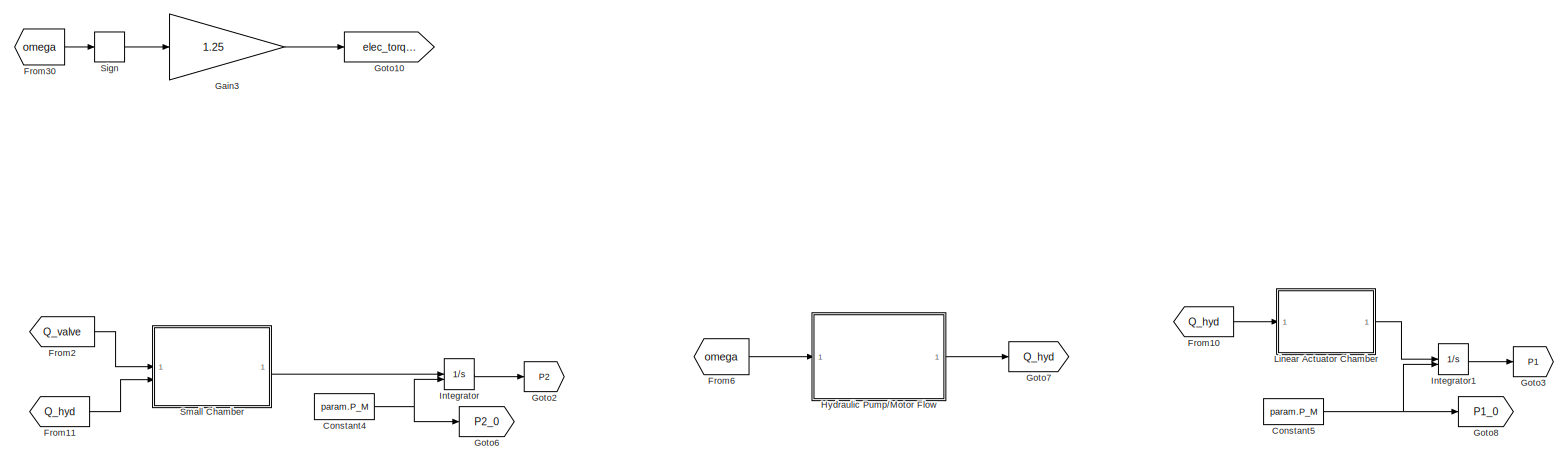
[diagram: root canvas - part 1/4, top left region]
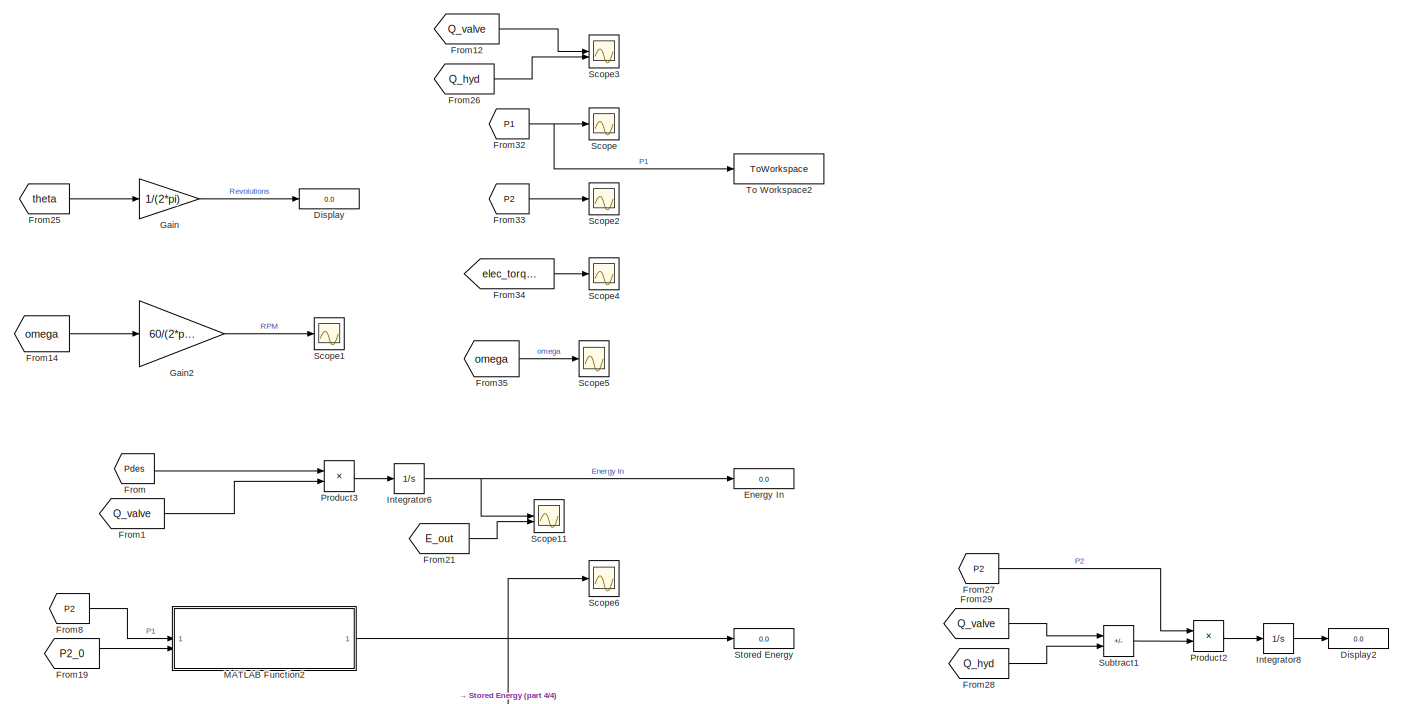
[diagram: root canvas - part 2/4, top right region]
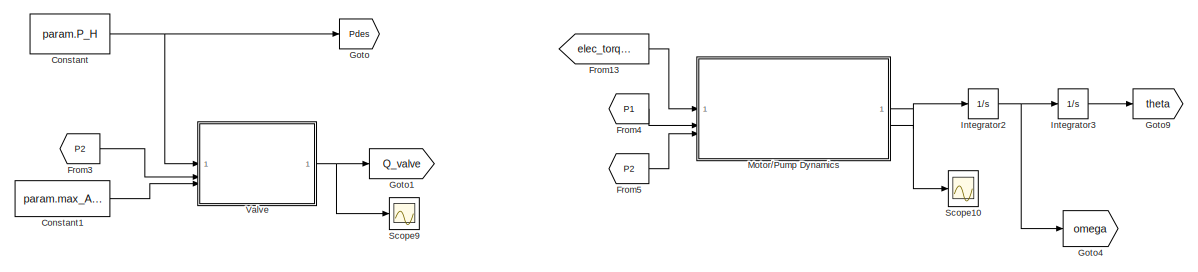
[diagram: root canvas - part 3/4, middle left region]
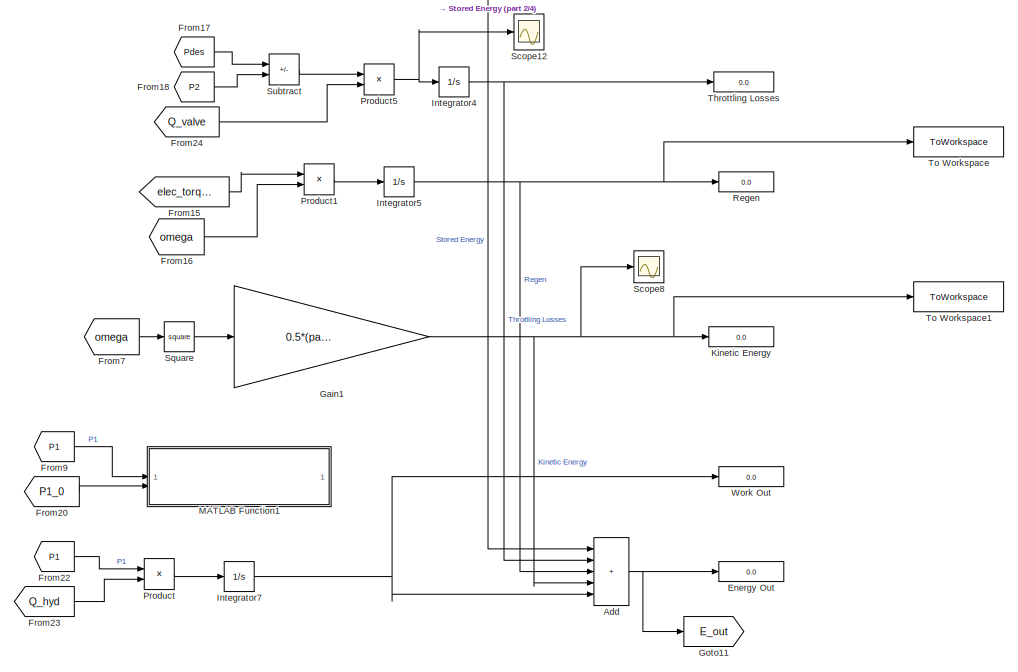
[diagram: root canvas - part 4/4, bottom right region]
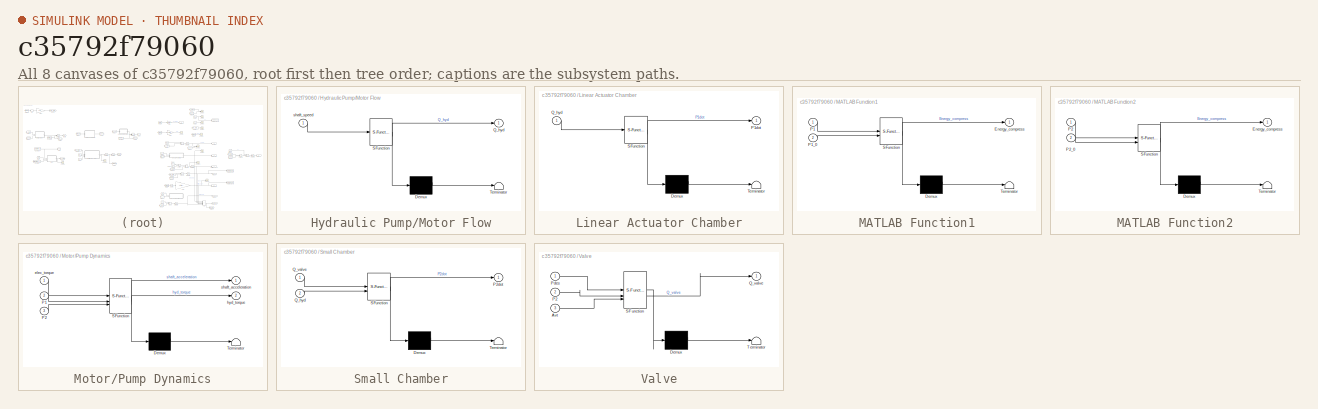
[diagram: thumbnail index - all 8 canvases of the model, root first then tree order]
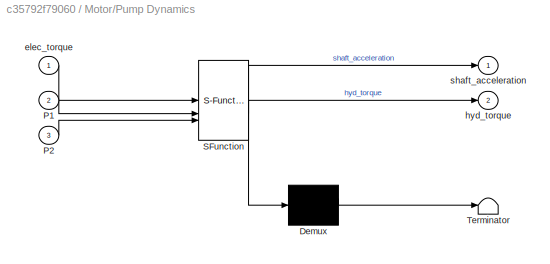
MODEL slx_c35792f79060
KIND model
CONFIG AbsTol = auto
CONFIG EnableMultiTasking = off
CONFIG FixedStep = 1e-7
CONFIG InitFcn = %% Parameters\n\nparam = struct();\n\n% Volume of chambers \nparam.V1_0 = 1e-3;\nparam.V2_0 = 20e-6;\n\n% Pressure rails\nparam.P_H = 20e6;\nparam.P_M = 10e6;\n\n% Valve things\nparam.max_Avt = 0.5*0.25*pi*(20e-3)^2;\nparam.Cd = 0.6;\n\n% Fluid properties\nparam.beta = 1.8e9;\nparam.rho = 870;\n\n% Electric motor stuff\nparam.Kt = 70.5e-3;\nparam.Ke = 70.5e-3;\nparam.J_elec = 140e-7;\n\n% Pump things\nparam.J_hyd = 3000e-7...<+66ch>
CONFIG MaxStep = 1e-5
CONFIG MinStep = auto
CONFIG RelTol = 1e-6
CONFIG SampleTimeConstraint = Unconstrained
CONFIG SolverName = ode1
CONFIG StartTime = 0.0
CONFIG StopTime = 0.15
BLOCK [Sum] Add
  IconShape = rectangular
  Inputs = +++++
BLOCK [Constant] Constant
  Value = param.P_H
BLOCK [Constant] Constant1
  Value = param.max_Avt
BLOCK [Constant] Constant4
  Value = param.P_M
BLOCK [Constant] Constant5
  Value = param.P_M
BLOCK [Display] Display
  Decimation = 1
BLOCK [Display] Display2
  Decimation = 1
BLOCK [Display] Energy In
  Decimation = 1
BLOCK [Display] Energy Out
  Decimation = 1
BLOCK [From] From
  GotoTag = Pdes
BLOCK [From] From1
  GotoTag = Q_valve
BLOCK [From] From10
  GotoTag = Q_hyd
BLOCK [From] From11
  GotoTag = Q_hyd
BLOCK [From] From12
  GotoTag = Q_valve
BLOCK [From] From13
  GotoTag = elec_torque
BLOCK [From] From14
  GotoTag = omega
BLOCK [From] From15
  GotoTag = elec_torque
BLOCK [From] From16
  GotoTag = omega
BLOCK [From] From17
  GotoTag = Pdes
BLOCK [From] From18
  GotoTag = P2
BLOCK [From] From19
  GotoTag = P2_0
BLOCK [From] From2
  GotoTag = Q_valve
BLOCK [From] From20
  GotoTag = P1_0
BLOCK [From] From21
  GotoTag = E_out
BLOCK [From] From22
  GotoTag = P1
BLOCK [From] From23
  GotoTag = Q_hyd
BLOCK [From] From24
  GotoTag = Q_valve
BLOCK [From] From25
  GotoTag = theta
BLOCK [From] From26
  GotoTag = Q_hyd
BLOCK [From] From27
  GotoTag = P2
BLOCK [From] From28
  GotoTag = Q_hyd
BLOCK [From] From29
  GotoTag = Q_valve
BLOCK [From] From3
  GotoTag = P2
BLOCK [From] From30
  GotoTag = omega
BLOCK [From] From32
  GotoTag = P1
BLOCK [From] From33
  GotoTag = P2
BLOCK [From] From34
  GotoTag = elec_torque
BLOCK [From] From35
  GotoTag = omega
BLOCK [From] From4
  GotoTag = P1
BLOCK [From] From5
  GotoTag = P2
BLOCK [From] From6
  GotoTag = omega
BLOCK [From] From7
  GotoTag = omega
BLOCK [From] From8
  GotoTag = P2
BLOCK [From] From9
  GotoTag = P1
BLOCK [Gain] Gain
  Gain = 1/(2*pi)
BLOCK [Gain] Gain1
  Gain = 0.5*(param.J_elec+param.J_hyd)
BLOCK [Gain] Gain2
  Gain = 60/(2*pi)
BLOCK [Gain] Gain3
  Gain = 1.25
BLOCK [Goto] Goto
  GotoTag = Pdes
BLOCK [Goto] Goto1
  GotoTag = Q_valve
BLOCK [Goto] Goto10
  GotoTag = elec_torque
BLOCK [Goto] Goto11
  GotoTag = E_out
BLOCK [Goto] Goto2
  GotoTag = P2
BLOCK [Goto] Goto3
  GotoTag = P1
BLOCK [Goto] Goto4
  GotoTag = omega
BLOCK [Goto] Goto6
  GotoTag = P2_0
BLOCK [Goto] Goto7
  GotoTag = Q_hyd
BLOCK [Goto] Goto8
  GotoTag = P1_0
BLOCK [Goto] Goto9
  GotoTag = theta
BLOCK [SubSystem] Hydraulic Pump//Motor Flow
  ErrorFcn = Stateflow.Translate.translate
  PermitHierarchicalResolution = ExplicitOnly
  SFBlockType = MATLAB Function
  TreatAsAtomicUnit = on
BLOCK [Demux] Hydraulic Pump//Motor Flow/ Demux 
  Outputs = 1
BLOCK [S-Function] Hydraulic Pump//Motor Flow/ SFunction 
  EnableBusSupport = on
  FunctionName = sf_sfun
  Parameters = param
  PortCounts = [1 2]
  SFcnIsStateOwnerBlock = off
  SFunctionDeploymentMode = off
  Tag = Stateflow S-Function 3
BLOCK [Terminator] Hydraulic Pump//Motor Flow/ Terminator 
BLOCK [Outport] Hydraulic Pump//Motor Flow/Q_hyd
BLOCK [Inport] Hydraulic Pump//Motor Flow/shaft_speed
BLOCK [Integrator] Integrator
  InitialCondition = param.P_M
  InitialConditionSource = external
BLOCK [Integrator] Integrator1
  InitialCondition = param.P_M
  InitialConditionSource = external
BLOCK [Integrator] Integrator2
BLOCK [Integrator] Integrator3
BLOCK [Integrator] Integrator4
BLOCK [Integrator] Integrator5
BLOCK [Integrator] Integrator6
BLOCK [Integrator] Integrator7
BLOCK [Integrator] Integrator8
BLOCK [Display] Kinetic Energy
  Decimation = 1
BLOCK [SubSystem] Linear Actuator Chamber
  ErrorFcn = Stateflow.Translate.translate
  PermitHierarchicalResolution = ExplicitOnly
  SFBlockType = MATLAB Function
  TreatAsAtomicUnit = on
BLOCK [Demux] Linear Actuator Chamber/ Demux 
  Outputs = 1
BLOCK [S-Function] Linear Actuator Chamber/ SFunction 
  EnableBusSupport = on
  FunctionName = sf_sfun
  Parameters = param
  PortCounts = [1 2]
  SFcnIsStateOwnerBlock = off
  SFunctionDeploymentMode = off
  Tag = Stateflow S-Function 5
BLOCK [Terminator] Linear Actuator Chamber/ Terminator 
BLOCK [Outport] Linear Actuator Chamber/P1dot
BLOCK [Inport] Linear Actuator Chamber/Q_hyd
BLOCK [SubSystem] MATLAB Function1
  ErrorFcn = Stateflow.Translate.translate
  LibrarySourceBlock = simulink/User-Defined\nFunctions/MATLAB Function
  PermitHierarchicalResolution = ExplicitOnly
  SFBlockType = MATLAB Function
  TreatAsAtomicUnit = on
BLOCK [Demux] MATLAB Function1/ Demux 
  Outputs = 1
BLOCK [S-Function] MATLAB Function1/ SFunction 
  EnableBusSupport = on
  FunctionName = sf_sfun
  Parameters = param
  PortCounts = [2 2]
  SFcnIsStateOwnerBlock = off
  SFunctionDeploymentMode = off
  Tag = Stateflow S-Function 7
BLOCK [Terminator] MATLAB Function1/ Terminator 
BLOCK [Outport] MATLAB Function1/Energy_compress
BLOCK [Inport] MATLAB Function1/P1
BLOCK [Inport] MATLAB Function1/P1_0
  Port = 2
BLOCK [SubSystem] MATLAB Function2
  ErrorFcn = Stateflow.Translate.translate
  LibrarySourceBlock = simulink/User-Defined\nFunctions/MATLAB Function
  PermitHierarchicalResolution = ExplicitOnly
  SFBlockType = MATLAB Function
  TreatAsAtomicUnit = on
BLOCK [Demux] MATLAB Function2/ Demux 
  Outputs = 1
BLOCK [S-Function] MATLAB Function2/ SFunction 
  EnableBusSupport = on
  FunctionName = sf_sfun
  Parameters = param
  PortCounts = [2 2]
  SFcnIsStateOwnerBlock = off
  SFunctionDeploymentMode = off
  Tag = Stateflow S-Function 4
BLOCK [Terminator] MATLAB Function2/ Terminator 
BLOCK [Outport] MATLAB Function2/Energy_compress
BLOCK [Inport] MATLAB Function2/P2
BLOCK [Inport] MATLAB Function2/P2_0
  Port = 2
BLOCK [SubSystem] Motor//Pump Dynamics
  ErrorFcn = Stateflow.Translate.translate
  PermitHierarchicalResolution = ExplicitOnly
  SFBlockType = MATLAB Function
  TreatAsAtomicUnit = on
BLOCK [Demux] Motor//Pump Dynamics/ Demux 
  Outputs = 1
BLOCK [S-Function] Motor//Pump Dynamics/ SFunction 
  EnableBusSupport = on
  FunctionName = sf_sfun
  Parameters = param
  PortCounts = [3 3]
  SFcnIsStateOwnerBlock = off
  SFunctionDeploymentMode = off
  Tag = Stateflow S-Function 6
BLOCK [Terminator] Motor//Pump Dynamics/ Terminator 
BLOCK [Inport] Motor//Pump Dynamics/P1
  Port = 2
BLOCK [Inport] Motor//Pump Dynamics/P2
  Port = 3
BLOCK [Inport] Motor//Pump Dynamics/elec_torque
BLOCK [Outport] Motor//Pump Dynamics/hyd_torque
  Port = 2
BLOCK [Outport] Motor//Pump Dynamics/shaft_acceleration
BLOCK [Product] Product
BLOCK [Product] Product1
BLOCK [Product] Product2
BLOCK [Product] Product3
BLOCK [Product] Product5
BLOCK [Display] Regen
  Decimation = 1
BLOCK [Scope] Scope
  Floating = off
  NumInputPorts = 1
  ScopeSpecificationString = Simulink.scopes.TimeScopeBlockCfg('CurrentConfiguration', extmgr.ConfigurationSet(extmgr.Configuration('Core','General UI',true),extmgr.Configuration('Core','Source UI',true),extmgr.Configuration('Sources','WiredSimulink',true,'DataLoggingVariableName','ScopeData1'),extmgr.Configuration('Visuals','Time Domain',true,'SerializedDisplays',{struct('MinYLimReal','8604179.71879','MaxYLimReal','22562382....<+1483ch>
BLOCK [Scope] Scope1
  Floating = off
  NumInputPorts = 1
  ScopeSpecificationString = Simulink.scopes.TimeScopeBlockCfg('CurrentConfiguration', extmgr.ConfigurationSet(extmgr.Configuration('Core','General UI',true),extmgr.Configuration('Core','Source UI',true),extmgr.Configuration('Sources','WiredSimulink',true,'DataLoggingVariableName','ScopeData1'),extmgr.Configuration('Visuals','Time Domain',true,'SerializedDisplays',{struct('MinYLimReal','-3631.17273','MaxYLimReal','3631.44467'...<+1412ch>
BLOCK [Scope] Scope10
  Floating = off
  NumInputPorts = 1
  ScopeSpecificationString = Simulink.scopes.TimeScopeBlockCfg('CurrentConfiguration', extmgr.ConfigurationSet(extmgr.Configuration('Core','General UI',true),extmgr.Configuration('Core','Source UI',true),extmgr.Configuration('Sources','WiredSimulink',true,'DataLoggingVariableName','ScopeData1'),extmgr.Configuration('Visuals','Time Domain',true,'SerializedDisplays',{struct('MinYLimReal','-3.18377','MaxYLimReal','3.18033','YLab...<+1484ch>
BLOCK [Scope] Scope11
  Floating = off
  NumInputPorts = 2
  ScopeSpecificationString = Simulink.scopes.TimeScopeBlockCfg('CurrentConfiguration', extmgr.ConfigurationSet(extmgr.Configuration('Core','General UI',true),extmgr.Configuration('Core','Source UI',true),extmgr.Configuration('Sources','WiredSimulink',true,'DataLoggingVariableName','ScopeData2'),extmgr.Configuration('Visuals','Time Domain',true,'SerializedDisplays',{struct('MinYLimReal','223.42241','MaxYLimReal','223.45909','Y...<+1460ch>
BLOCK [Scope] Scope12
  Floating = off
  NumInputPorts = 1
  ScopeSpecificationString = Simulink.scopes.TimeScopeBlockCfg('CurrentConfiguration', extmgr.ConfigurationSet(extmgr.Configuration('Core','General UI',true),extmgr.Configuration('Core','Source UI',true),extmgr.Configuration('Sources','WiredSimulink',true,'DataLoggingVariableName','ScopeData3'),extmgr.Configuration('Visuals','Time Domain',true,'SerializedDisplays',{struct('MinYLimReal','-0.22301','MaxYLimReal','0.25245','YLab...<+1462ch>
BLOCK [Scope] Scope2
  Floating = off
  NumInputPorts = 1
  ScopeSpecificationString = Simulink.scopes.TimeScopeBlockCfg('CurrentConfiguration', extmgr.ConfigurationSet(extmgr.Configuration('Core','General UI',true),extmgr.Configuration('Core','Source UI',true),extmgr.Configuration('Sources','WiredSimulink',true,'DataLoggingVariableName','ScopeData2'),extmgr.Configuration('Visuals','Time Domain',true,'SerializedDisplays',{struct('MinYLimReal','8749929.75361','MaxYLimReal','21250632....<+1462ch>
BLOCK [Scope] Scope3
  Floating = off
  NumInputPorts = 2
  ScopeSpecificationString = Simulink.scopes.TimeScopeBlockCfg('CurrentConfiguration', extmgr.ConfigurationSet(extmgr.Configuration('Core','General UI',true),extmgr.Configuration('Core','Source UI',true),extmgr.Configuration('Sources','WiredSimulink',true,'DataLoggingVariableName','ScopeData1'),extmgr.Configuration('Visuals','Time Domain',true,'SerializedDisplays',{struct('MinYLimReal','-0.00191','MaxYLimReal','0.01609','YLab...<+1448ch>
BLOCK [Scope] Scope4
  Floating = off
  NumInputPorts = 1
  ScopeSpecificationString = Simulink.scopes.TimeScopeBlockCfg('CurrentConfiguration', extmgr.ConfigurationSet(extmgr.Configuration('Core','General UI',true),extmgr.Configuration('Core','Source UI',true),extmgr.Configuration('Sources','WiredSimulink',true,'DataLoggingVariableName','ScopeData4'),extmgr.Configuration('Visuals','Time Domain',true,'SerializedDisplays',{struct('MinYLimReal','-0.00000000000067','MaxYLimReal','0.000...<+1491ch>
BLOCK [Scope] Scope5
  Floating = off
  NumInputPorts = 1
  ScopeSpecificationString = Simulink.scopes.TimeScopeBlockCfg('CurrentConfiguration', extmgr.ConfigurationSet(extmgr.Configuration('Core','General UI',true),extmgr.Configuration('Core','Source UI',true),extmgr.Configuration('Sources','WiredSimulink',true,'DataLoggingVariableName','ScopeData5'),extmgr.Configuration('Visuals','Time Domain',true,'SerializedDisplays',{struct('MinYLimReal','-525.14339','MaxYLimReal','525.56049','...<+1473ch>
BLOCK [Scope] Scope6
  Floating = off
  NumInputPorts = 1
  ScopeSpecificationString = Simulink.scopes.TimeScopeBlockCfg('CurrentConfiguration', extmgr.ConfigurationSet(extmgr.Configuration('Core','General UI',true),extmgr.Configuration('Core','Source UI',true),extmgr.Configuration('Sources','WiredSimulink',true,'DataLoggingVariableName','ScopeData2'),extmgr.Configuration('Visuals','Time Domain',true,'SerializedDisplays',{struct('MinYLimReal','1.65524','MaxYLimReal','1.66784','YLabe...<+1465ch>
BLOCK [Scope] Scope8
  Floating = off
  NumInputPorts = 1
  ScopeSpecificationString = Simulink.scopes.TimeScopeBlockCfg('CurrentConfiguration', extmgr.ConfigurationSet(extmgr.Configuration('Core','General UI',true),extmgr.Configuration('Core','Source UI',true),extmgr.Configuration('Sources','WiredSimulink',true,'DataLoggingVariableName','ScopeData2'),extmgr.Configuration('Visuals','Time Domain',true,'SerializedDisplays',{struct('MinYLimReal','-493.4824','MaxYLimReal','85.68335','YL...<+1409ch>
BLOCK [Scope] Scope9
  Floating = off
  NumInputPorts = 1
  ScopeSpecificationString = Simulink.scopes.TimeScopeBlockCfg('CurrentConfiguration', extmgr.ConfigurationSet(extmgr.Configuration('Core','General UI',true),extmgr.Configuration('Core','Source UI',true),extmgr.Configuration('Sources','WiredSimulink',true,'DataLoggingVariableName','ScopeData1'),extmgr.Configuration('Visuals','Time Domain',true,'SerializedDisplays',{struct('MinYLimReal','-0.00282','MaxYLimReal','0.01619','YLab...<+1364ch>
BLOCK [Signum] Sign
BLOCK [SubSystem] Small Chamber
  ErrorFcn = Stateflow.Translate.translate
  PermitHierarchicalResolution = ExplicitOnly
  SFBlockType = MATLAB Function
  TreatAsAtomicUnit = on
BLOCK [Demux] Small Chamber/ Demux 
  Outputs = 1
BLOCK [S-Function] Small Chamber/ SFunction 
  EnableBusSupport = on
  FunctionName = sf_sfun
  Parameters = param
  PortCounts = [2 2]
  SFcnIsStateOwnerBlock = off
  SFunctionDeploymentMode = off
  Tag = Stateflow S-Function 1
BLOCK [Terminator] Small Chamber/ Terminator 
BLOCK [Outport] Small Chamber/P2dot
BLOCK [Inport] Small Chamber/Q_hyd
  Port = 2
BLOCK [Inport] Small Chamber/Q_valve
BLOCK [Math] Square
  Operator = square
BLOCK [Display] Stored Energy
  Decimation = 1
BLOCK [Sum] Subtract
  IconShape = rectangular
  Inputs = +-
BLOCK [Sum] Subtract1
  IconShape = rectangular
  Inputs = +-
BLOCK [Display] Throttling Losses
  Decimation = 1
BLOCK [ToWorkspace] To Workspace
  FixptAsFi = on
  MaxDataPoints = inf
  SampleTime = -1
  SaveFormat = Timeseries
  VariableName = Regen
BLOCK [ToWorkspace] To Workspace1
  FixptAsFi = on
  MaxDataPoints = inf
  SampleTime = -1
  SaveFormat = Timeseries
  VariableName = KE
BLOCK [ToWorkspace] To Workspace2
  FixptAsFi = on
  MaxDataPoints = inf
  SampleTime = -1
  SaveFormat = Timeseries
  VariableName = P1
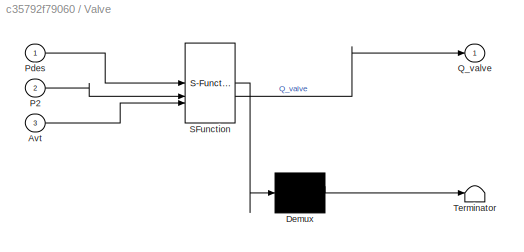
BLOCK [SubSystem] Valve
  ErrorFcn = Stateflow.Translate.translate
  PermitHierarchicalResolution = ExplicitOnly
  SFBlockType = MATLAB Function
  TreatAsAtomicUnit = on
BLOCK [Demux] Valve/ Demux 
  Outputs = 1
BLOCK [S-Function] Valve/ SFunction 
  EnableBusSupport = on
  FunctionName = sf_sfun
  Parameters = param
  PortCounts = [3 2]
  SFcnIsStateOwnerBlock = off
  SFunctionDeploymentMode = off
  Tag = Stateflow S-Function 2
BLOCK [Terminator] Valve/ Terminator 
BLOCK [Inport] Valve/Avt
  Port = 3
BLOCK [Inport] Valve/P2
  Port = 2
BLOCK [Inport] Valve/Pdes
BLOCK [Outport] Valve/Q_valve
BLOCK [Display] Work Out
  Decimation = 1
NET Add:1 -> Energy Out:1, Goto11:1
LINE Constant1:1 -> Valve:3
NET Constant4:1 -> Goto6:1, Integrator:2
NET Constant5:1 -> Goto8:1, Integrator1:2
NET Constant:1 -> Goto:1, Valve:1
LINE From10:1 -> Linear Actuator Chamber:1
LINE From11:1 -> Small Chamber:2
LINE From12:1 -> Scope3:1
LINE From13:1 -> Motor//Pump Dynamics:1
LINE From14:1 -> Gain2:1
LINE From15:1 -> Product1:1
LINE From16:1 -> Product1:2
LINE From17:1 -> Subtract:1
LINE From18:1 -> Subtract:2
LINE From19:1 -> MATLAB Function2:2
LINE From1:1 -> Product3:2
LINE From20:1 -> MATLAB Function1:2
LINE From21:1 -> Scope11:2
LINE From22:1 -> Product:1
LINE From23:1 -> Product:2
LINE From24:1 -> Product5:2
LINE From25:1 -> Gain:1
LINE From26:1 -> Scope3:2
LINE From27:1 -> Product2:1
LINE From28:1 -> Subtract1:2
LINE From29:1 -> Subtract1:1
LINE From2:1 -> Small Chamber:1
LINE From30:1 -> Sign:1
NET From32:1 -> Scope:1, To Workspace2:1
LINE From33:1 -> Scope2:1
LINE From34:1 -> Scope4:1
LINE From35:1 -> Scope5:1
LINE From3:1 -> Valve:2
LINE From4:1 -> Motor//Pump Dynamics:2
LINE From5:1 -> Motor//Pump Dynamics:3
LINE From6:1 -> Hydraulic Pump//Motor Flow:1
LINE From7:1 -> Square:1
LINE From8:1 -> MATLAB Function2:1
LINE From9:1 -> MATLAB Function1:1
LINE From:1 -> Product3:1
NET Gain1:1 -> Add:4, Kinetic Energy:1, Scope8:1, To Workspace1:1
LINE Gain2:1 -> Scope1:1
LINE Gain3:1 -> Goto10:1
LINE Gain:1 -> Display:1
LINE Hydraulic Pump//Motor Flow:1 -> Goto7:1
LINE Integrator1:1 -> Goto3:1
NET Integrator2:1 -> Goto4:1, Integrator3:1
LINE Integrator3:1 -> Goto9:1
NET Integrator4:1 -> Add:2, Throttling Losses:1
NET Integrator5:1 -> Add:3, Regen:1, To Workspace:1
NET Integrator6:1 -> Energy In:1, Scope11:1
NET Integrator7:1 -> Add:5, Work Out:1
LINE Integrator8:1 -> Display2:1
LINE Integrator:1 -> Goto2:1
LINE Linear Actuator Chamber:1 -> Integrator1:1
NET MATLAB Function2:1 -> Add:1, Scope6:1, Stored Energy:1
LINE Motor//Pump Dynamics:1 -> Integrator2:1
LINE Motor//Pump Dynamics:2 -> Scope10:1
LINE Product1:1 -> Integrator5:1
LINE Product2:1 -> Integrator8:1
LINE Product3:1 -> Integrator6:1
NET Product5:1 -> Integrator4:1, Scope12:1
LINE Product:1 -> Integrator7:1
LINE Sign:1 -> Gain3:1
LINE Small Chamber:1 -> Integrator:1
LINE Square:1 -> Gain1:1
LINE Subtract1:1 -> Product2:2
LINE Subtract:1 -> Product5:1
NET Valve:1 -> Goto1:1, Scope9:1
note: NET lines group one-source signal fan-out (src -> all destinations, sorted); 1:1 wires keep LINE
CHART Small Chamber states=1 transitions=1
  STATE_LABEL 'eML_blk_kernel()'
  STATE_LABEL 'SCRIPT:\nfunction P2dot = fcn(param, Q_valve, Q_hyd)\n\nP2dot = (param.beta/param.V2_0)*(Q_valve - Q_hyd);\n'
CHART Valve states=1 transitions=1
  STATE_LABEL 'eML_blk_kernel()'
  STATE_LABEL 'SCRIPT:\nfunction Q_valve = fcn(Pdes, P2, Avt, param)\n\nQ_valve = param.Cd*Avt*sqrt((2/param.rho)*abs(Pdes-P2))*sign(Pdes-P2);\n'
CHART Hydraulic Pump//Motor Flow states=1 transitions=1
  STATE_LABEL 'eML_blk_kernel()'
  STATE_LABEL 'SCRIPT:\nfunction Q_hyd  = fcn(param, shaft_speed)\n\nQ_hyd = (param.hyd_D/(2*pi))*shaft_speed;\n\n'
CHART MATLAB Function2 states=1 transitions=1
  STATE_LABEL 'eML_blk_kernel()'
  STATE_LABEL 'SCRIPT:\nfunction Energy_compress  = fcn(P2, P2_0, param)\n\n%% Normal\nWv = param.beta*(exp(P2/param.beta)-(1+P2/param.beta));\nW0 = param.beta*(exp(P2_0/param.beta)-(1+P2_0/param.beta));\n\nEnergy_compress = param.V2_0*(Wv-W0);\n\n%% Hydraulic Effort\n% phi_v = param.beta*(exp(P2/param.beta)-1);\n% phi_0 = param.beta*(exp(P2_0/param.beta)-1);\n\n% Energy_compress = param.V2_0*(phi_v-phi_0);'
CHART Linear Actuator Chamber states=1 transitions=1
  STATE_LABEL 'eML_blk_kernel()'
  STATE_LABEL 'SCRIPT:\nfunction P1dot = fcn(param, Q_hyd)\n\nP1dot = (param.beta/param.V1_0)*(Q_hyd);\n'
CHART Motor//Pump Dynamics states=1 transitions=1
  STATE_LABEL 'eML_blk_kernel()'
  STATE_LABEL 'SCRIPT:\nfunction [shaft_acceleration, hyd_torque] = fcn(param, elec_torque, P1, P2)\n\nhyd_torque = (param.hyd_D/(2*pi))*(P2 - P1);\n\nshaft_acceleration = (1/(param.J_hyd+param.J_elec))*(hyd_torque - elec_torque);\n\n\n\n'
CHART MATLAB Function1 states=1 transitions=1
  STATE_LABEL 'eML_blk_kernel()'
  STATE_LABEL 'SCRIPT:\nfunction Energy_compress = fcn(P1, P1_0, param)\n\nWv = param.beta*(exp(P1/param.beta)-(1+P1/param.beta));\nW0 = param.beta*(exp(P1_0/param.beta)-(1+P1_0/param.beta));\n\nEnergy_compress = param.V1_0*(Wv-W0);'
CHART  states=0 transitions=0
CHART  states=0 transitions=0
CHART  states=0 transitions=0
CHART  states=0 transitions=0
CHART  states=0 transitions=0
CHART  states=0 transitions=0
CHART  states=0 transitions=0
